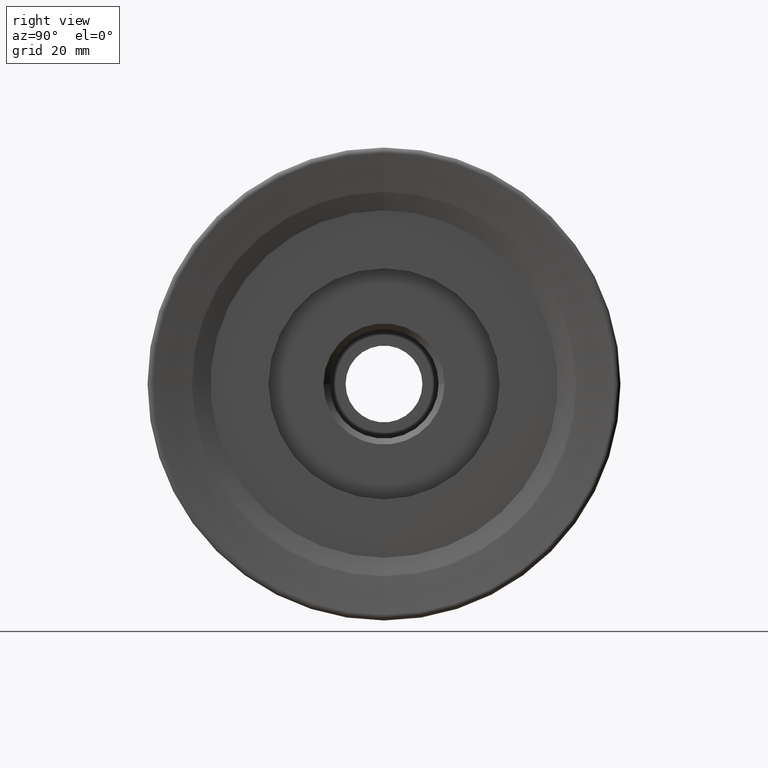
[diagram: clean part render]
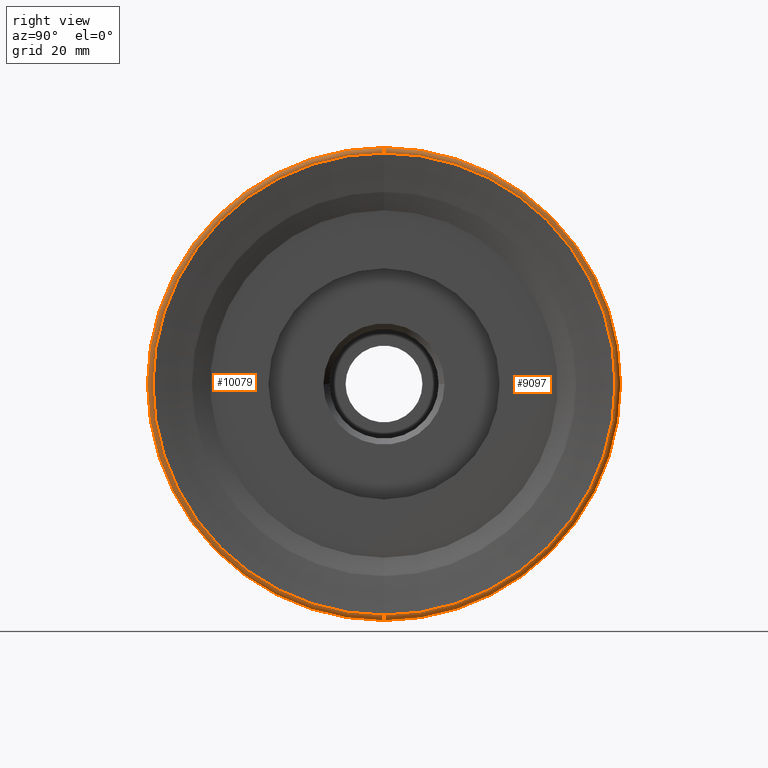
[diagram: same view with one multi-face feature highlighted, each face labeled with its STEP entity id]
A machine part, right view. The highlighted faces form ONE feature: a constant-radius fillet chain: 2 tangent blend faces with common blend radius 0.8044 mm. The faces share edges in the B-rep.
Their STEP definitions:
[1] entity #10079 (Torus):
#79 = DIRECTION ( 'NONE',  ( 1.000000000000000000, -0.0000000000000000000, -0.0000000000000000000 ) ) ;
#92 = CARTESIAN_POINT ( 'NONE',  ( 0.9987052883598621600, 0.0000000000000000000, 0.0000000000000000000 ) ) ;
#94 = DIRECTION ( 'NONE',  ( 0.0000000000000000000, 0.0000000000000000000, -1.000000000000000000 ) ) ;
#1661 = ORIENTED_EDGE ( 'NONE', *, *, #7454, .F. ) ;
#2306 = VERTEX_POINT ( 'NONE', #2374 ) ;
#2322 = VERTEX_POINT ( 'NONE', #2499 ) ;
#2374 = CARTESIAN_POINT ( 'NONE',  ( 0.9987052883598619400, 0.0000000000000000000, -40.00000000000000000 ) ) ;
#2499 = CARTESIAN_POINT ( 'NONE',  ( 1.795837475865317500, 4.786855113661762100E-015, 39.08763830513873200 ) ) ;
#4734 = EDGE_LOOP ( 'NONE', ( #6411, #6397, #6275, #1661 ) ) ;
#4905 = CIRCLE ( 'NONE', #7970, 0.8044088188240705600 ) ;
#4909 = CIRCLE ( 'NONE', #7978, 39.08763830513873200 ) ;
#5860 = AXIS2_PLACEMENT_3D ( 'NONE', #12288, #12295, #12296 ) ;
#5908 = AXIS2_PLACEMENT_3D ( 'NONE', #12988, #12989, #12990 ) ;
#5922 = AXIS2_PLACEMENT_3D ( 'NONE', #92, #79, #94 ) ;
#6275 = ORIENTED_EDGE ( 'NONE', *, *, #7449, .T. ) ;
#6397 = ORIENTED_EDGE ( 'NONE', *, *, #9900, .T. ) ;
#6411 = ORIENTED_EDGE ( 'NONE', *, *, #10055, .F. ) ;
#6474 = DIRECTION ( 'NONE',  ( 0.0000000000000000000, 0.0000000000000000000, -1.000000000000000000 ) ) ;
#6645 = CARTESIAN_POINT ( 'NONE',  ( 1.795837475865317500, 0.0000000000000000000, -39.08763830513873200 ) ) ;
#6659 = CARTESIAN_POINT ( 'NONE',  ( 0.9987052883598619400, 4.898587196589413000E-015, 40.00000000000000000 ) ) ;
#6792 = DIRECTION ( 'NONE',  ( -0.0000000000000000000, -1.000000000000000000, -0.0000000000000000000 ) ) ;
#6793 = CARTESIAN_POINT ( 'NONE',  ( 0.9987052883598621600, 0.0000000000000000000, -39.19559118117592800 ) ) ;
#6794 = DIRECTION ( 'NONE',  ( 0.0000000000000000000, 0.0000000000000000000, -1.000000000000000000 ) ) ;
#6858 = CARTESIAN_POINT ( 'NONE',  ( 1.795837475865317500, 0.0000000000000000000, 0.0000000000000000000 ) ) ;
#6859 = DIRECTION ( 'NONE',  ( 1.000000000000000000, -0.0000000000000000000, -0.0000000000000000000 ) ) ;
#7029 = VERTEX_POINT ( 'NONE', #6645 ) ;
#7198 = VERTEX_POINT ( 'NONE', #6659 ) ;
#7449 = EDGE_CURVE ( 'NONE', #2306, #7029, #4905, .T. ) ;
#7454 = EDGE_CURVE ( 'NONE', #2322, #7029, #4909, .T. ) ;
#7970 = AXIS2_PLACEMENT_3D ( 'NONE', #6793, #6792, #6794 ) ;
#7978 = AXIS2_PLACEMENT_3D ( 'NONE', #6858, #6859, #6474 ) ;
#9900 = EDGE_CURVE ( 'NONE', #7198, #2306, #11083, .T. ) ;
#10055 = EDGE_CURVE ( 'NONE', #7198, #2322, #11168, .T. ) ;
#10079 = ADVANCED_FACE ( 'NONE', ( #11190 ), #11194, .T. ) ;
#11083 = CIRCLE ( 'NONE', #5860, 40.00000000000000000 ) ;
#11168 = CIRCLE ( 'NONE', #5908, 0.8044088188240705600 ) ;
#11190 = FACE_OUTER_BOUND ( 'NONE', #4734, .T. ) ;
#11194 = TOROIDAL_SURFACE ( 'NONE', #5922, 39.19559118117592800, 0.8044088188240698900 ) ;
#12288 = CARTESIAN_POINT ( 'NONE',  ( 0.9987052883598619400, 0.0000000000000000000, 0.0000000000000000000 ) ) ;
#12295 = DIRECTION ( 'NONE',  ( 1.000000000000000000, -0.0000000000000000000, -0.0000000000000000000 ) ) ;
#12296 = DIRECTION ( 'NONE',  ( 0.0000000000000000000, 0.0000000000000000000, -1.000000000000000000 ) ) ;
#12988 = CARTESIAN_POINT ( 'NONE',  ( 0.9987052883598621600, 4.800075528071533000E-015, 39.19559118117592800 ) ) ;
#12989 = DIRECTION ( 'NONE',  ( 0.0000000000000000000, 1.000000000000000000, -1.224646799147353200E-016 ) ) ;
#12990 = DIRECTION ( 'NONE',  ( 0.0000000000000000000, 1.224646799147350500E-016, 1.000000000000000000 ) ) ;
[2] entity #9097 (Torus):
#64 = CARTESIAN_POINT ( 'NONE',  ( 0.9987052883598619400, 0.0000000000000000000, 0.0000000000000000000 ) ) ;
#81 = DIRECTION ( 'NONE',  ( 1.000000000000000000, -0.0000000000000000000, -0.0000000000000000000 ) ) ;
#82 = DIRECTION ( 'NONE',  ( 0.0000000000000000000, 0.0000000000000000000, -1.000000000000000000 ) ) ;
#2078 = ORIENTED_EDGE ( 'NONE', *, *, #10055, .T. ) ;
#2269 = ORIENTED_EDGE ( 'NONE', *, *, #10035, .F. ) ;
#2281 = ORIENTED_EDGE ( 'NONE', *, *, #7449, .F. ) ;
#2287 = ORIENTED_EDGE ( 'NONE', *, *, #10075, .T. ) ;
#2306 = VERTEX_POINT ( 'NONE', #2374 ) ;
#2322 = VERTEX_POINT ( 'NONE', #2499 ) ;
#2374 = CARTESIAN_POINT ( 'NONE',  ( 0.9987052883598619400, 0.0000000000000000000, -40.00000000000000000 ) ) ;
#2499 = CARTESIAN_POINT ( 'NONE',  ( 1.795837475865317500, 4.786855113661762100E-015, 39.08763830513873200 ) ) ;
#3261 = DIRECTION ( 'NONE',  ( 1.000000000000000000, -0.0000000000000000000, -0.0000000000000000000 ) ) ;
#3262 = CARTESIAN_POINT ( 'NONE',  ( 0.9987052883598621600, 0.0000000000000000000, 0.0000000000000000000 ) ) ;
#3264 = DIRECTION ( 'NONE',  ( 0.0000000000000000000, 0.0000000000000000000, -1.000000000000000000 ) ) ;
#4644 = EDGE_LOOP ( 'NONE', ( #2287, #2078, #2269, #2281 ) ) ;
#4905 = CIRCLE ( 'NONE', #7970, 0.8044088188240705600 ) ;
#5670 = AXIS2_PLACEMENT_3D ( 'NONE', #3262, #3261, #3264 ) ;
#5900 = AXIS2_PLACEMENT_3D ( 'NONE', #12880, #12896, #12897 ) ;
#5908 = AXIS2_PLACEMENT_3D ( 'NONE', #12988, #12989, #12990 ) ;
#5915 = AXIS2_PLACEMENT_3D ( 'NONE', #64, #81, #82 ) ;
#6645 = CARTESIAN_POINT ( 'NONE',  ( 1.795837475865317500, 0.0000000000000000000, -39.08763830513873200 ) ) ;
#6659 = CARTESIAN_POINT ( 'NONE',  ( 0.9987052883598619400, 4.898587196589413000E-015, 40.00000000000000000 ) ) ;
#6792 = DIRECTION ( 'NONE',  ( -0.0000000000000000000, -1.000000000000000000, -0.0000000000000000000 ) ) ;
#6793 = CARTESIAN_POINT ( 'NONE',  ( 0.9987052883598621600, 0.0000000000000000000, -39.19559118117592800 ) ) ;
#6794 = DIRECTION ( 'NONE',  ( 0.0000000000000000000, 0.0000000000000000000, -1.000000000000000000 ) ) ;
#7029 = VERTEX_POINT ( 'NONE', #6645 ) ;
#7198 = VERTEX_POINT ( 'NONE', #6659 ) ;
#7449 = EDGE_CURVE ( 'NONE', #2306, #7029, #4905, .T. ) ;
#7970 = AXIS2_PLACEMENT_3D ( 'NONE', #6793, #6792, #6794 ) ;
#9097 = ADVANCED_FACE ( 'NONE', ( #10734 ), #10736, .T. ) ;
#10035 = EDGE_CURVE ( 'NONE', #7029, #2322, #11150, .T. ) ;
#10055 = EDGE_CURVE ( 'NONE', #7198, #2322, #11168, .T. ) ;
#10075 = EDGE_CURVE ( 'NONE', #2306, #7198, #11188, .T. ) ;
#10734 = FACE_OUTER_BOUND ( 'NONE', #4644, .T. ) ;
#10736 = TOROIDAL_SURFACE ( 'NONE', #5670, 39.19559118117592800, 0.8044088188240698900 ) ;
#11150 = CIRCLE ( 'NONE', #5900, 39.08763830513873200 ) ;
#11168 = CIRCLE ( 'NONE', #5908, 0.8044088188240705600 ) ;
#11188 = CIRCLE ( 'NONE', #5915, 40.00000000000000000 ) ;
#12880 = CARTESIAN_POINT ( 'NONE',  ( 1.795837475865317500, 0.0000000000000000000, 0.0000000000000000000 ) ) ;
#12896 = DIRECTION ( 'NONE',  ( 1.000000000000000000, -0.0000000000000000000, -0.0000000000000000000 ) ) ;
#12897 = DIRECTION ( 'NONE',  ( 0.0000000000000000000, 0.0000000000000000000, -1.000000000000000000 ) ) ;
#12988 = CARTESIAN_POINT ( 'NONE',  ( 0.9987052883598621600, 4.800075528071533000E-015, 39.19559118117592800 ) ) ;
#12989 = DIRECTION ( 'NONE',  ( 0.0000000000000000000, 1.000000000000000000, -1.224646799147353200E-016 ) ) ;
#12990 = DIRECTION ( 'NONE',  ( 0.0000000000000000000, 1.224646799147350500E-016, 1.000000000000000000 ) ) ;